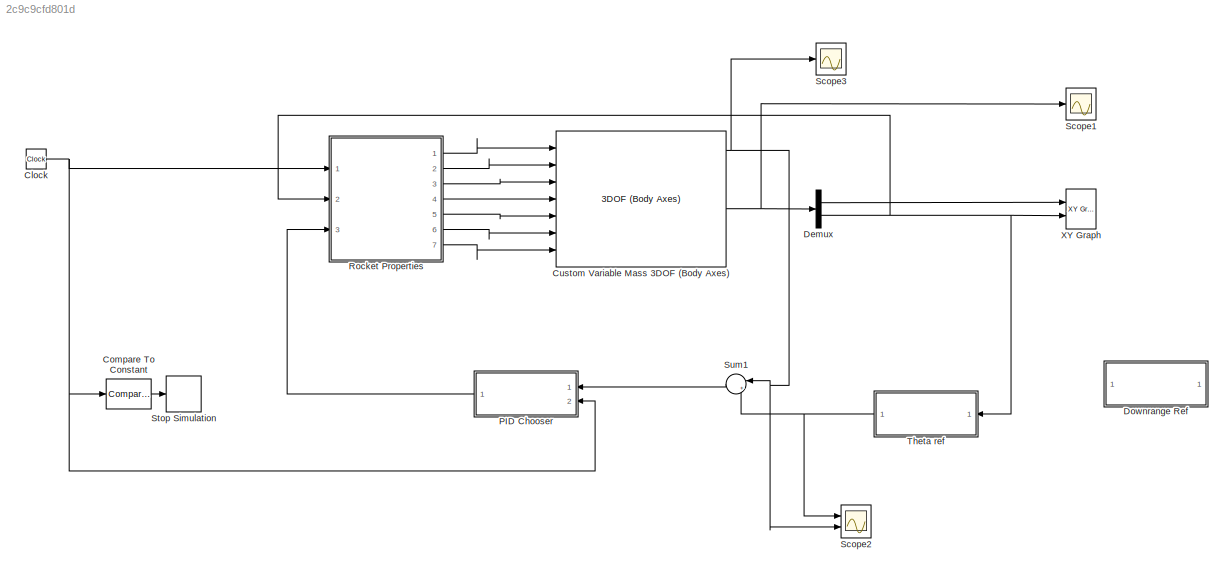
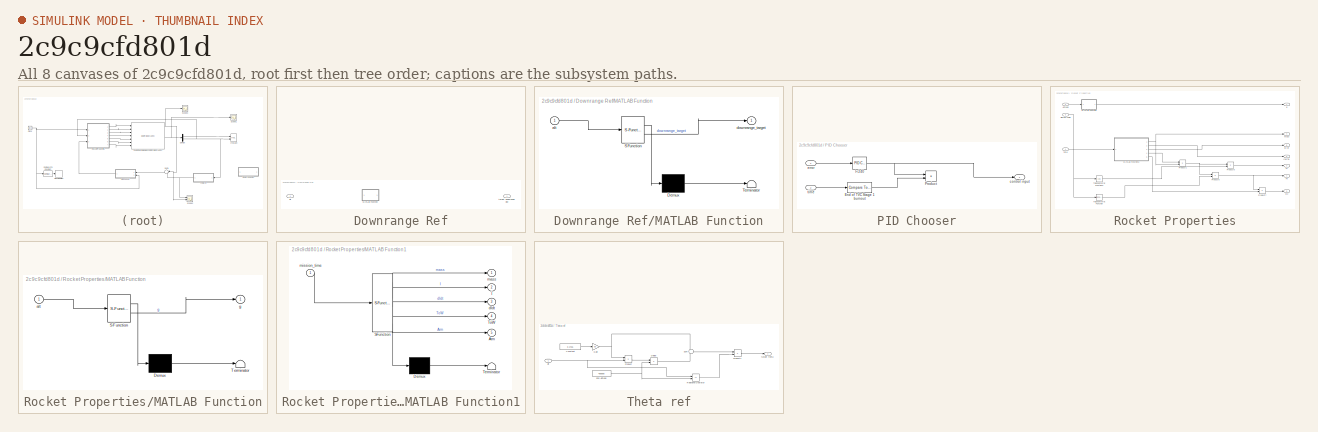
[diagram: thumbnail index - all 8 canvases of the model, root first then tree order]
MODEL slx_2c9c9cfd801d
KIND model
CONFIG AbsTol = auto
CONFIG EnableMultiTasking = off
CONFIG FixedStep = auto
CONFIG MaxStep = auto
CONFIG MinStep = auto
CONFIG RelTol = 1e-3
CONFIG SampleTimeConstraint = Unconstrained
CONFIG SolverName = VariableStepAuto
CONFIG StartTime = 0.0
CONFIG StopTime = 500
BLOCK [Clock] Clock
  DisplayTime = on
BLOCK [Reference] Compare To Constant  REF=simulink/Logic and Bit
Operations/Compare
To Constant
  Ports = [1, 1]
  SourceBlock = simulink/Logic and Bit\nOperations/Compare\nTo Constant
  SourceProductBaseCode = SL
  SourceType = Compare To Constant
BLOCK [Reference] Custom Variable Mass 3DOF (Body Axes)  REF=shared3dof/3DOF (Body Axes)
  Ports = [7, 6]
  SourceBlock = shared3dof/3DOF (Body Axes)
  SourceProductBaseCode = AE,PW,MT,UV,VE,VP
  SourceType = 3DOF EoM
BLOCK [Demux] Demux
  Outputs = 2
  Ports = [1, 2]
BLOCK [SubSystem] Downrange Ref
  Ports = [1, 1]
  RequestExecContextInheritance = off
BLOCK [SubSystem] Downrange Ref/MATLAB Function
  ErrorFcn = Stateflow.Translate.translate
  PermitHierarchicalResolution = ExplicitOnly
  Ports = [1, 1]
  RequestExecContextInheritance = off
  SFBlockType = MATLAB Function
  TreatAsAtomicUnit = on
BLOCK [Demux] Downrange Ref/MATLAB Function/ Demux 
  Outputs = 1
  Ports = [1, 1]
BLOCK [S-Function] Downrange Ref/MATLAB Function/ SFunction 
  EnableBusSupport = off
  FunctionName = sf_sfun
  PortCounts = [1 2]
  Ports = [1, 2]
  SFcnIsStateOwnerBlock = off
  SFunctionDeploymentMode = off
  Tag = Stateflow S-Function 3
BLOCK [Terminator] Downrange Ref/MATLAB Function/ Terminator 
BLOCK [Inport] Downrange Ref/MATLAB Function/alt
BLOCK [Outport] Downrange Ref/MATLAB Function/downrange_target
BLOCK [Inport] Downrange Ref/alt
BLOCK [Outport] Downrange Ref/target Downrange dist
BLOCK [SubSystem] PID Chooser
  Ports = [2, 1]
  RequestExecContextInheritance = off
BLOCK [Reference] PID Chooser/End of TVC Stage 1 burnout  REF=simulink/Logic and Bit
Operations/Compare
To Constant
  Ports = [1, 1]
  SourceBlock = simulink/Logic and Bit\nOperations/Compare\nTo Constant
  SourceProductBaseCode = SL
  SourceType = Compare To Constant
BLOCK [Product] PID Chooser/Product
  Ports = [2, 1]
BLOCK [Outport] PID Chooser/control input
BLOCK [Inport] PID Chooser/error
BLOCK [Reference] PID Chooser/t<240  REF=pid_lib/PID Controller
  Ports = [1, 1]
  SourceBlock = pid_lib/PID Controller
  SourceProductBaseCode = SL
  SourceType = PID 1dof
BLOCK [Inport] PID Chooser/time
  Port = 2
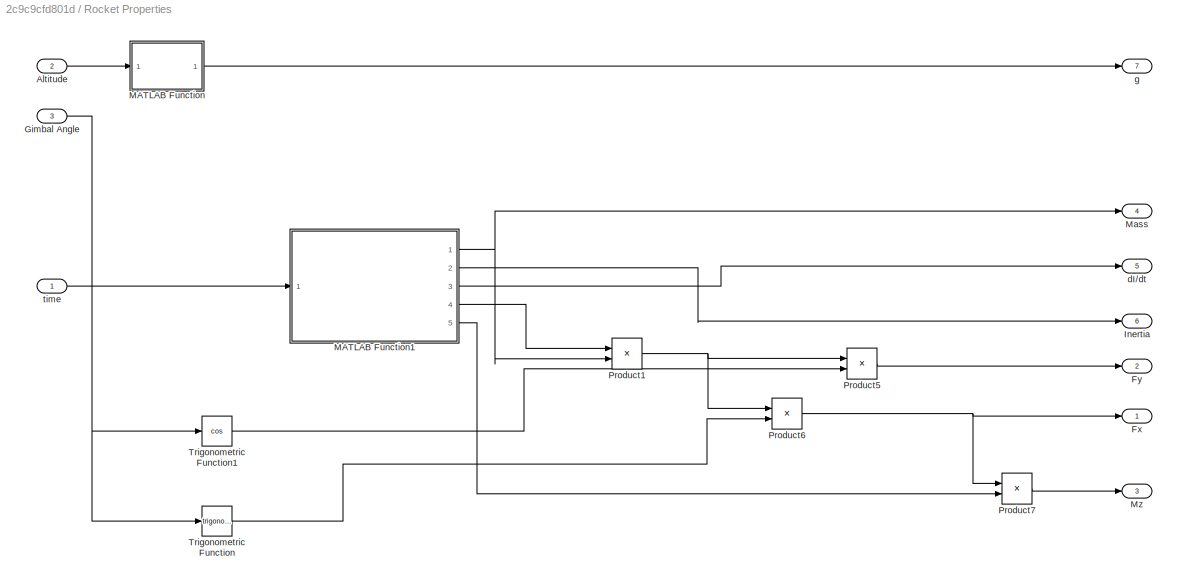
BLOCK [SubSystem] Rocket Properties
  Ports = [3, 7]
  RequestExecContextInheritance = off
BLOCK [Inport] Rocket Properties/Altitude
  Port = 2
BLOCK [Outport] Rocket Properties/Fx
BLOCK [Outport] Rocket Properties/Fy
  Port = 2
BLOCK [Inport] Rocket Properties/Gimbal Angle
  Port = 3
BLOCK [Outport] Rocket Properties/Inertia
  Port = 6
BLOCK [SubSystem] Rocket Properties/MATLAB Function
  ErrorFcn = Stateflow.Translate.translate
  PermitHierarchicalResolution = ExplicitOnly
  Ports = [1, 1]
  RequestExecContextInheritance = off
  SFBlockType = MATLAB Function
  TreatAsAtomicUnit = on
BLOCK [Demux] Rocket Properties/MATLAB Function/ Demux 
  Outputs = 1
  Ports = [1, 1]
BLOCK [S-Function] Rocket Properties/MATLAB Function/ SFunction 
  EnableBusSupport = on
  FunctionName = sf_sfun
  PortCounts = [1 2]
  Ports = [1, 2]
  SFcnIsStateOwnerBlock = off
  SFunctionDeploymentMode = off
  Tag = Stateflow S-Function 2
BLOCK [Terminator] Rocket Properties/MATLAB Function/ Terminator 
BLOCK [Inport] Rocket Properties/MATLAB Function/alt
BLOCK [Outport] Rocket Properties/MATLAB Function/g
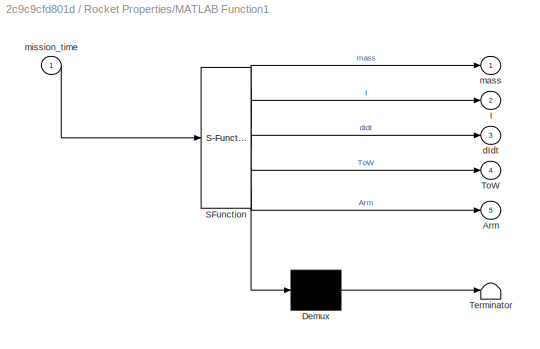
BLOCK [SubSystem] Rocket Properties/MATLAB Function1
  ErrorFcn = Stateflow.Translate.translate
  PermitHierarchicalResolution = ExplicitOnly
  Ports = [1, 5]
  RequestExecContextInheritance = off
  SFBlockType = MATLAB Function
  TreatAsAtomicUnit = on
BLOCK [Demux] Rocket Properties/MATLAB Function1/ Demux 
  Outputs = 1
  Ports = [1, 1]
BLOCK [S-Function] Rocket Properties/MATLAB Function1/ SFunction 
  EnableBusSupport = on
  FunctionName = sf_sfun
  PortCounts = [1 6]
  Ports = [1, 6]
  SFcnIsStateOwnerBlock = off
  SFunctionDeploymentMode = off
  Tag = Stateflow S-Function 1
BLOCK [Terminator] Rocket Properties/MATLAB Function1/ Terminator 
BLOCK [Outport] Rocket Properties/MATLAB Function1/Arm
  Port = 5
BLOCK [Outport] Rocket Properties/MATLAB Function1/I
  Port = 2
BLOCK [Outport] Rocket Properties/MATLAB Function1/ToW
  Port = 4
BLOCK [Outport] Rocket Properties/MATLAB Function1/dIdt
  Port = 3
BLOCK [Outport] Rocket Properties/MATLAB Function1/mass
BLOCK [Inport] Rocket Properties/MATLAB Function1/mission_time
BLOCK [Outport] Rocket Properties/Mass
  Port = 4
BLOCK [Outport] Rocket Properties/Mz
  Port = 3
BLOCK [Product] Rocket Properties/Product1
  Ports = [2, 1]
BLOCK [Product] Rocket Properties/Product5
  Ports = [2, 1]
BLOCK [Product] Rocket Properties/Product6
  Ports = [2, 1]
BLOCK [Product] Rocket Properties/Product7
  Ports = [2, 1]
BLOCK [Trigonometry] Rocket Properties/Trigonometric Function
  Ports = [1, 1]
BLOCK [Trigonometry] Rocket Properties/Trigonometric Function1
  Operator = cos
  Ports = [1, 1]
BLOCK [Outport] Rocket Properties/dI//dt
  Port = 5
BLOCK [Outport] Rocket Properties/g
  Port = 7
BLOCK [Inport] Rocket Properties/time
BLOCK [Scope] Scope1
  Floating = off
  NumInputPorts = 1
  Ports = [1]
  ScopeSpecificationString = Simulink.scopes.TimeScopeBlockCfg('CurrentConfiguration', extmgr.ConfigurationSet(extmgr.Configuration('Core','General UI',true),extmgr.Configuration('Core','Source UI',true),extmgr.Configuration('Sources','WiredSimulink',true,'DataLoggingVariableName','ScopeData1'),extmgr.Configuration('Visuals','Time Domain',true,'SerializedDisplays',{struct('MinYLimReal','-166259.07556','MaxYLimReal','1496331.6...<+1506ch>
BLOCK [Scope] Scope2
  Floating = off
  NumInputPorts = 2
  Ports = [2]
  ScopeSpecificationString = Simulink.scopes.TimeScopeBlockCfg('CurrentConfiguration', extmgr.ConfigurationSet(extmgr.Configuration('Core','General UI',true),extmgr.Configuration('Core','Source UI',true),extmgr.Configuration('Sources','WiredSimulink',true,'DataLoggingVariableName','ScopeData2'),extmgr.Configuration('Visuals','Time Domain',true,'SerializedDisplays',{struct('MinYLimReal','-0.00667','MaxYLimReal','0.02704','YLab...<+1507ch>
BLOCK [Scope] Scope3
  Floating = off
  NumInputPorts = 1
  Ports = [1]
  ScopeSpecificationString = Simulink.scopes.TimeScopeBlockCfg('CurrentConfiguration', extmgr.ConfigurationSet(extmgr.Configuration('Core','General UI',true),extmgr.Configuration('Core','Source UI',true),extmgr.Configuration('Sources','WiredSimulink',true,'DataLoggingVariableName','ScopeData1'),extmgr.Configuration('Visuals','Time Domain',true,'SerializedDisplays',{struct('MinYLimReal','-0.19801','MaxYLimReal','1.76784','YLab...<+1425ch>
BLOCK [Stop] Stop Simulation
BLOCK [Sum] Sum1
  Inputs = |+-
  Ports = [2, 1]
BLOCK [SubSystem] Theta ref
  Ports = [1, 1]
  RequestExecContextInheritance = off
BLOCK [Constant] Theta ref/Constant
  Value = 3.1415
BLOCK [Product] Theta ref/Divide
  Inputs = */
  Ports = [2, 1]
BLOCK [Constant] Theta ref/End Altitude
  Value = 400000
BLOCK [Gain] Theta ref/Gain
  Gain = 0.5
BLOCK [Product] Theta ref/Product
  Ports = [2, 1]
BLOCK [Product] Theta ref/Product1
  Ports = [2, 1]
BLOCK [RelationalOperator] Theta ref/Relational Operator
  InputSameDT = off
  Operator = <=
  OutDataTypeStr = boolean
  Ports = [2, 1]
  RndMeth = Simplest
BLOCK [Sum] Theta ref/Sum
  Inputs = +-
  Ports = [2, 1]
BLOCK [Inport] Theta ref/alt
BLOCK [Outport] Theta ref/target theta
BLOCK [Reference] XY Graph  REF=simulink/Sinks/XY Graph
  Ports = [2]
  SourceBlock = simulink/Sinks/XY Graph
  SourceProductBaseCode = SL
  SourceType = XY scope.
NET Clock:1 -> Compare To Constant:1, PID Chooser:2, Rocket Properties:1
LINE Compare To Constant:1 -> Stop Simulation:1
NET Custom Variable Mass 3DOF (Body Axes):1 -> Scope2:2, Scope3:1, Sum1:1
NET Custom Variable Mass 3DOF (Body Axes):4 -> Demux:1, Scope1:1
LINE Demux:1 -> XY Graph:1
NET Demux:2 -> Rocket Properties:2, Theta ref:1, XY Graph:2
LINE PID Chooser/End of TVC Stage 1 burnout:1 -> PID Chooser/Product:2
LINE PID Chooser/error:1 -> PID Chooser/t<240:1
NET PID Chooser/t<240:1 -> PID Chooser/Product:1, PID Chooser/control input:1
LINE PID Chooser/time:1 -> PID Chooser/End of TVC Stage 1 burnout:1
LINE PID Chooser:1 -> Rocket Properties:3
LINE Rocket Properties/Altitude:1 -> Rocket Properties/MATLAB Function:1
NET Rocket Properties/Gimbal Angle:1 -> Rocket Properties/Trigonometric Function1:1, Rocket Properties/Trigonometric Function:1
NET Rocket Properties/MATLAB Function1:1 -> Rocket Properties/Mass:1, Rocket Properties/Product1:2
LINE Rocket Properties/MATLAB Function1:2 -> Rocket Properties/Inertia:1
LINE Rocket Properties/MATLAB Function1:3 -> Rocket Properties/dI//dt:1
LINE Rocket Properties/MATLAB Function1:4 -> Rocket Properties/Product1:1
LINE Rocket Properties/MATLAB Function1:5 -> Rocket Properties/Product7:2
LINE Rocket Properties/MATLAB Function:1 -> Rocket Properties/g:1
NET Rocket Properties/Product1:1 -> Rocket Properties/Product5:1, Rocket Properties/Product6:1
LINE Rocket Properties/Product5:1 -> Rocket Properties/Fy:1
NET Rocket Properties/Product6:1 -> Rocket Properties/Fx:1, Rocket Properties/Product7:1
LINE Rocket Properties/Product7:1 -> Rocket Properties/Mz:1
LINE Rocket Properties/Trigonometric Function1:1 -> Rocket Properties/Product5:2
LINE Rocket Properties/Trigonometric Function:1 -> Rocket Properties/Product6:2
LINE Rocket Properties/time:1 -> Rocket Properties/MATLAB Function1:1
LINE Rocket Properties:1 -> Custom Variable Mass 3DOF (Body Axes):1
LINE Rocket Properties:2 -> Custom Variable Mass 3DOF (Body Axes):2
LINE Rocket Properties:3 -> Custom Variable Mass 3DOF (Body Axes):3
LINE Rocket Properties:4 -> Custom Variable Mass 3DOF (Body Axes):4
LINE Rocket Properties:5 -> Custom Variable Mass 3DOF (Body Axes):5
LINE Rocket Properties:6 -> Custom Variable Mass 3DOF (Body Axes):6
LINE Rocket Properties:7 -> Custom Variable Mass 3DOF (Body Axes):7
LINE Sum1:1 -> PID Chooser:1
LINE Theta ref/Constant:1 -> Theta ref/Gain:1
LINE Theta ref/Divide:1 -> Theta ref/Sum:2
NET Theta ref/End Altitude:1 -> Theta ref/Divide:2, Theta ref/Relational Operator:2
NET Theta ref/Gain:1 -> Theta ref/Product:1, Theta ref/Sum:1
LINE Theta ref/Product1:1 -> Theta ref/target theta:1
LINE Theta ref/Product:1 -> Theta ref/Divide:1
LINE Theta ref/Relational Operator:1 -> Theta ref/Product1:2
LINE Theta ref/Sum:1 -> Theta ref/Product1:1
NET Theta ref/alt:1 -> Theta ref/Product:2, Theta ref/Relational Operator:1
NET Theta ref:1 -> Scope2:1, Sum1:2
note: NET lines group one-source signal fan-out (src -> all destinations, sorted); 1:1 wires keep LINE
CHART Rocket Properties/MATLAB Function1 states=1 transitions=1
  STATE_LABEL 'eML_blk_kernel()'
  STATE_LABEL 'SCRIPT:\nfunction [mass,I,dIdt,ToW,Arm] = rocket_prop_eval(mission_time)\n\nL = [14.52 1.95 1.83];\n\ntbb = [114.8962  156.7683  261.4940];\n\nm0 = [1.1112e4    0.1664e4    0.0239e4];\n\nM0 = 1.3065e+04;\n\nm_dot = [69.2893    7.4443    0.5640];\n\nDiam = 0.83;\n\nthick = 0.001;\n\n\nif mission_time < tbb(1)\n        \n        m_dot_current = m_dot(1);\n        \n        mass = M0 - (m_dot(1)*mission_time);\n        \n  ...<+624ch>'
CHART Rocket Properties/MATLAB Function states=1 transitions=1
  STATE_LABEL 'eML_blk_kernel()'
  STATE_LABEL 'SCRIPT:\nfunction g = g_calc(alt)\n\nMu = 3.986004418e14;\nRe = 6.371e6;\n\nR = Re + alt;\n\ng = (Mu/(R^2));\n\nend\n'
CHART Downrange Ref/MATLAB Function states=1 transitions=1
  STATE_LABEL 'eML_blk_kernel()'
  STATE_LABEL 'SCRIPT:\nfunction downrange_target = traj_ref(alt)\n\ndownrange_target = -5e-32*alt^6 + 4e-25*alt^5 - 1e-18*alt^4 + 2e-12*alt^3 - 1e-06*alt^2 + 0.5577*alt^ + 2793.1;\n\nend'
CHART  states=0 transitions=0
CHART  states=0 transitions=0
CHART  states=0 transitions=0
